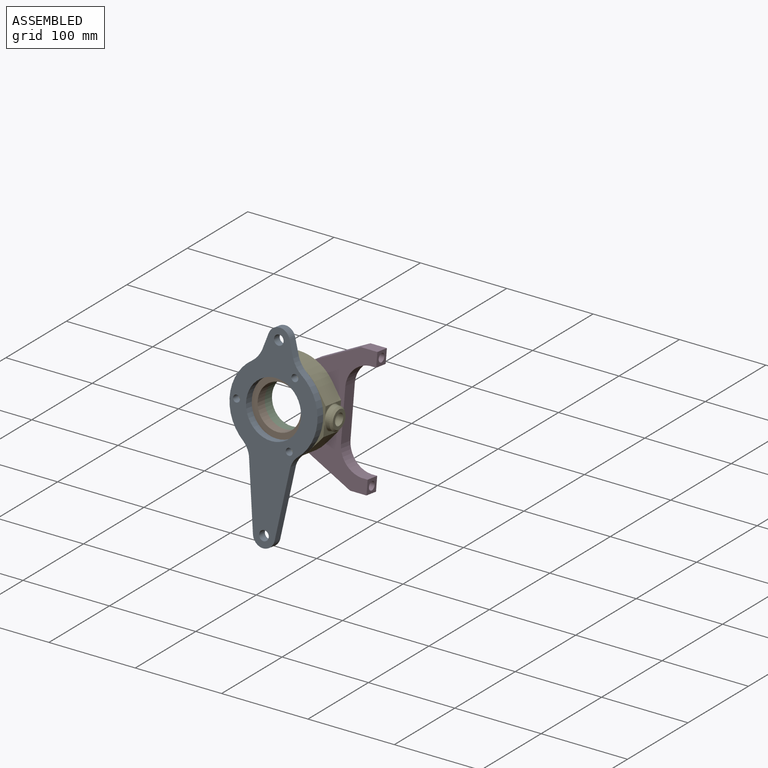
[diagram: assembled view]
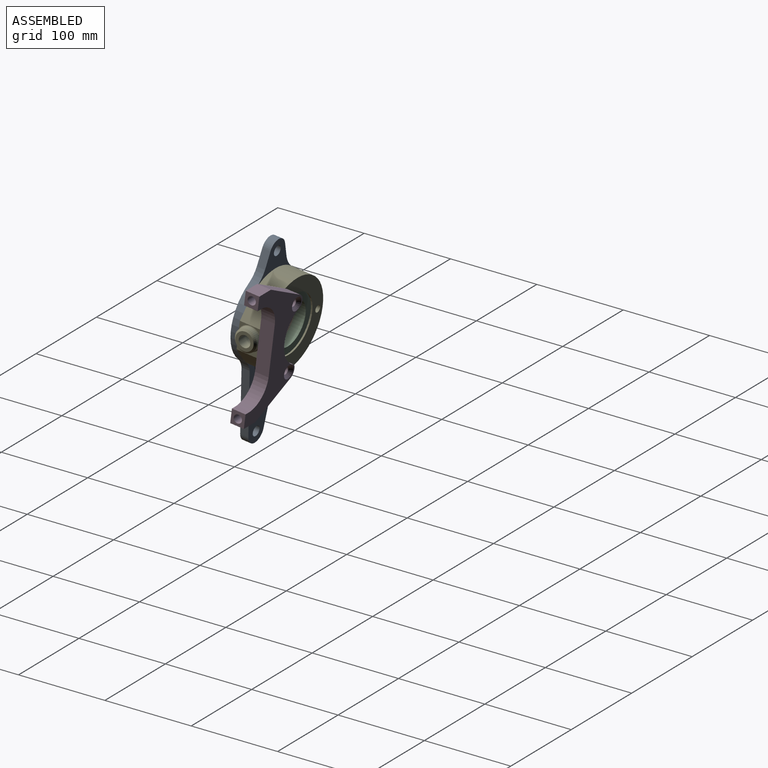
[diagram: assembled view, second angle]
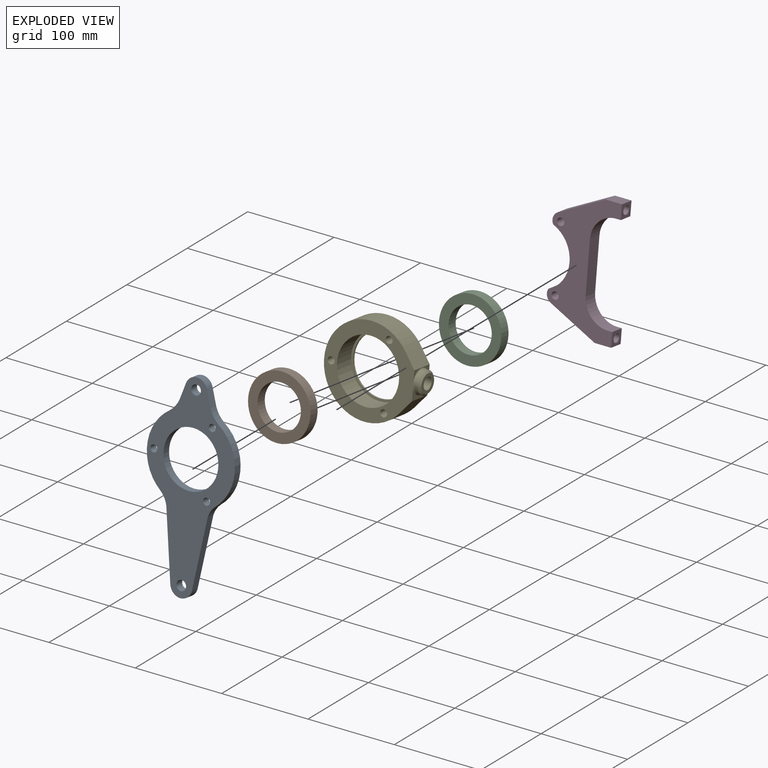
[diagram: exploded view]
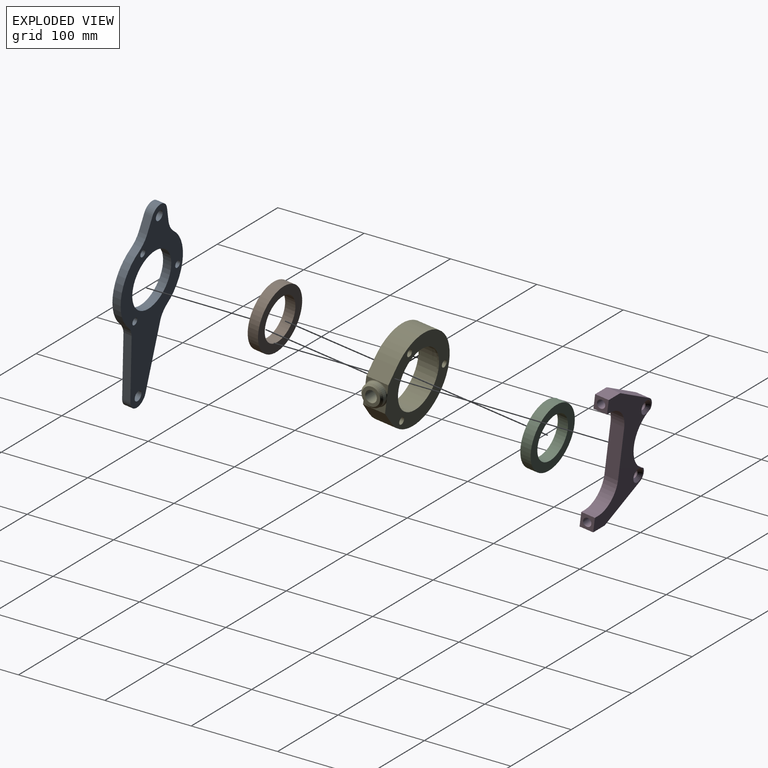
[diagram: exploded view, second angle]
ASSEMBLY  parts=5 mates=4
PART A: 20 faces, bbox 101.6x9.5x222.3 mm
  f0: cylinder r=50.8mm len=82.17mm, axis (0,1,0), area 912.6mm2, adj f1,f16,f18,f19
  f1: cylinder r=30.7mm len=13.91mm, axis (0,1,0), area 167.8mm2, adj f0,f2,f18,f19
  f2: plane 17.59x9.53mm, normal (0.95,0,0.31), area 176.1mm2, adj f1,f3,f18,f19
  f3: cylinder r=12.7mm len=24.16mm, axis (0,1,0), area 304.2mm2, adj f2,f4,f18,f19
  f4: plane 17.87x9.53mm, normal (-0.95,0,0.31), area 179mm2, adj f3,f5,f18,f19
  f5: cylinder r=30.7mm len=13.64mm, axis (0,1,0), area 165mm2, adj f4,f6,f18,f19
  f6: cylinder r=50.8mm len=82.17mm, axis (0,1,0), area 912.6mm2, adj f5,f7,f18,f19
  f7: cylinder r=24.91mm len=11.85mm, axis (0,1,0), area 134.6mm2, adj f6,f8,f18,f19
  f8: plane 77.13x11.52mm, normal (-0.99,0,-0.15), area 742.8mm2, adj f7,f9,f18,f19
  f9: cylinder r=12.7mm len=25.12mm, axis (0,1,0), area 344.3mm2, adj f8,f10,f18,f19
  f10: plane 76.06x11.25mm, normal (0.99,0,-0.15), area 732.3mm2, adj f9,f16,f18,f19
  f11: cylinder r=5.56mm len=11.11mm, axis (0,1,0), area 332.5mm2, adj f18,f19
  f12: cylinder r=5.56mm len=11.11mm, axis (0,1,0), area 332.5mm2, adj f18,f19
  f13: cylinder r=3.97mm len=9.53mm, axis (0,1,0), area 237.5mm2, adj f18,f19
  f14: cylinder r=3.97mm len=9.53mm, axis (0,1,0), area 237.5mm2, adj f18,f19
  f15: cylinder r=3.97mm len=9.53mm, axis (0,1,0), area 237.5mm2, adj f18,f19
  f16: cylinder r=24.91mm len=12.9mm, axis (0,1,0), area 144.9mm2, adj f0,f10,f18,f19
  f17: cylinder r=31.75mm len=63.5mm, axis (0,1,0), area 1900.2mm2, adj f18,f19
  f18: plane 222.25x101.6mm, normal (0,-1,0), area 8761.5mm2, adj f0,f1,f2,f3,f4,f5,f6,f7
  f19: plane 222.25x101.6mm, normal (0,1,0), area 8761.5mm2, adj f0,f1,f2,f3,f4,f5,f6,f7
PART B: 4 faces, bbox 72x12x72 mm
  f0: cylinder r=25mm len=50mm, axis (0,1,0), area 1885mm2, adj f2,f3
  f1: cylinder r=36mm len=72mm, axis (0,1,0), area 2714.3mm2, adj f2,f3
  f2: plane 72x72mm, normal (0,-1,0), area 2108mm2, adj f0,f1
  f3: plane 72x72mm, normal (0,1,0), area 2108mm2, adj f0,f1
PART C: same geometry as B
PART D: 24 faces, bbox 144.5x15.9x77.4 mm
  f0: cylinder r=4.13mm len=12.38mm, axis (0,1,0), area 321.1mm2, adj f17,f19
  f1: cylinder r=4.13mm len=12.38mm, axis (0,1,0), area 321.1mm2, adj f17,f18
  f2: plane 58.73x15.88mm, normal (0,0,-1), area 932.4mm2, adj f3,f15,f16,f17
  f3: cylinder r=28.23mm len=26.99mm, axis (0,1,0), area 654.2mm2, adj f2,f4,f16,f17
  f4: plane 15.88x7.1mm, normal (-1,0,0), area 112.6mm2, adj f3,f5,f16,f17
  f5: plane 15.88x15.88mm, normal (0,0,-1), area 180.8mm2, adj f4,f6,f16,f17,f22
  f6: plane 19.05x15.88mm, normal (1,0,0), area 302.4mm2, adj f5,f7,f16,f17
  f7: plane 53.13x26.61mm, normal (0.89,0,0.45), area 943.3mm2, adj f6,f8,f16,f17
  f8: cylinder r=9.53mm len=15.88mm, axis (0,1,0), area 246.6mm2, adj f7,f9,f16,f17
  f9: cylinder r=34.92mm len=64.69mm, axis (0,1,0), area 1312.8mm2, adj f8,f10,f16,f17
  f10: cylinder r=9.53mm len=15.88mm, axis (0,1,0), area 246.6mm2, adj f9,f11,f16,f17
  f11: plane 53.13x26.61mm, normal (-0.89,0,0.45), area 943.3mm2, adj f10,f12,f16,f17
  f12: plane 19.05x15.88mm, normal (-1,0,0), area 302.4mm2, adj f11,f13,f16,f17
  f13: plane 15.88x15.88mm, normal (0,0,-1), area 180.8mm2, adj f12,f14,f16,f17,f20
  f14: plane 15.88x7.1mm, normal (1,0,0), area 112.6mm2, adj f13,f15,f16,f17
  f15: cylinder r=28.23mm len=26.99mm, axis (0,1,0), area 654.2mm2, adj f2,f14,f16,f17
  f16: plane 144.46x77.44mm, normal (0,-1,0), area 4578.9mm2, adj f2,f3,f4,f5,f6,f7,f8,f9
  f17: plane 144.46x77.44mm, normal (0,1,0), area 4836.7mm2, adj f0,f1,f2,f3,f4,f5,f6,f7
  f18: cone r=4.13mm half-angle=45deg, axis (0,-1,0), area 182.3mm2, adj f1,f16
  f19: cone r=4.13mm half-angle=45deg, axis (0,-1,0), area 182.3mm2, adj f0,f16
  f20: cylinder r=4.76mm len=19.05mm, axis (0,0,-1), area 570mm2, adj f13,f21
  f21: plane 9.53x9.53mm, normal (0,0,-1), area 71.3mm2, adj f20
  f22: cylinder r=4.76mm len=19.05mm, axis (0,0,-1), area 570mm2, adj f5,f23
  f23: plane 9.53x9.53mm, normal (0,0,-1), area 71.3mm2, adj f22
PART E: 21 faces, bbox 111.2x29.7x101.7 mm
  f0: cylinder r=35.94mm len=71.88mm, axis (0,1,0), area 5220mm2, adj f2,f12,f20
  f1: plane 25.65x8.75mm, normal (1,0,0), area 68.5mm2, adj f4,f11,f12,f16
  f2: plane 71.88x71.88mm, normal (0,-1,0), area 542.7mm2, adj f0,f10
  f3: plane 25.65x11.29mm, normal (1,0,0), area 133.6mm2, adj f9,f11,f12,f17
  f4: plane 25.65x15.53mm, normal (0.81,0,0.59), area 492.1mm2, adj f1,f5,f11,f12
  f5: cylinder r=50.8mm len=101.6mm, axis (0,1,0), area 6451.9mm2, adj f4,f9,f11,f12
  f6: cylinder r=3.97mm len=25.65mm, axis (0,1,0), area 639.7mm2, adj f11,f12
  f7: cylinder r=3.97mm len=25.65mm, axis (0,1,0), area 639.7mm2, adj f11,f12
  f8: cylinder r=3.97mm len=25.65mm, axis (0,1,0), area 639.7mm2, adj f11,f12
  f9: plane 25.65x16.1mm, normal (0.76,0,-0.65), area 542.4mm2, adj f3,f5,f11,f12
  f10: cylinder r=33.45mm len=66.9mm, axis (0,1,0), area 400.4mm2, adj f2,f11
  f11: plane 103.3x101.72mm, normal (0,1,0), area 4563.3mm2, adj f1,f3,f4,f5,f6,f7,f8,f9
  f12: plane 103.3x101.72mm, normal (0,-1,0), area 4020.6mm2, adj f0,f1,f3,f4,f5,f6,f7,f8
  f13: cylinder r=12.7mm len=25.4mm, axis (-1,0,0), area 366.9mm2, adj f15,f16,f17,f18,f19
  f14: plane 21.08x21.08mm, normal (1,0,0), area 206.1mm2, adj f19,f20
  f15: bspline ~11.54x1.41mm, area 11.8mm2, adj f11,f13,f16,f17
  f16: torus R=13.97mm, axis (-1,0,0), area 61.1mm2, adj f1,f13,f15,f18
  f17: torus R=13.97mm, axis (-1,0,0), area 61.1mm2, adj f3,f13,f15,f18
  f18: bspline ~11.54x1.41mm, area 11.8mm2, adj f12,f13,f16,f17
  f19: cone r=10.54mm half-angle=45deg, axis (-1,0,0), area 222.9mm2, adj f13,f14
  f20: cylinder r=6.75mm len=25.02mm, axis (1,0,0), area 1047.1mm2, adj f0,f14
PLACE A rot(axis=(0,0.06,1),180deg) t=(-48.31,-102.35,-82.33)mm
PLACE B rot(axis=(1,0,0),172.8deg) t=(-48.31,-92.9,-83.52)mm
PLACE C rot(axis=(1,0,0),172.8deg) t=(-48.31,-80.99,-85.01)mm
PLACE D rot(axis=(0.71,-0.04,-0.71),174.9deg) t=(-48.31,-67.19,-86.75)mm
PLACE E rot(axis=(-1,0,0),7.2deg) t=(-48.31,-67.19,-86.75)mm
MATE fastened A.f17 <-> B.f1  axis (0,0.99,-0.12) through (-48.31,-92.9,-83.52)mm
MATE fastened B.f0 <-> C.f1  axis (0,0.99,-0.12) through (-48.31,-80.99,-85.01)mm
MATE fastened C.f0 <-> E.f0  axis (0,0.99,-0.12) through (-48.31,-69.08,-86.51)mm
MATE fastened D.f9 <-> E.f10  axis (0,-0.99,0.12) through (-48.31,-67.19,-86.75)mm
